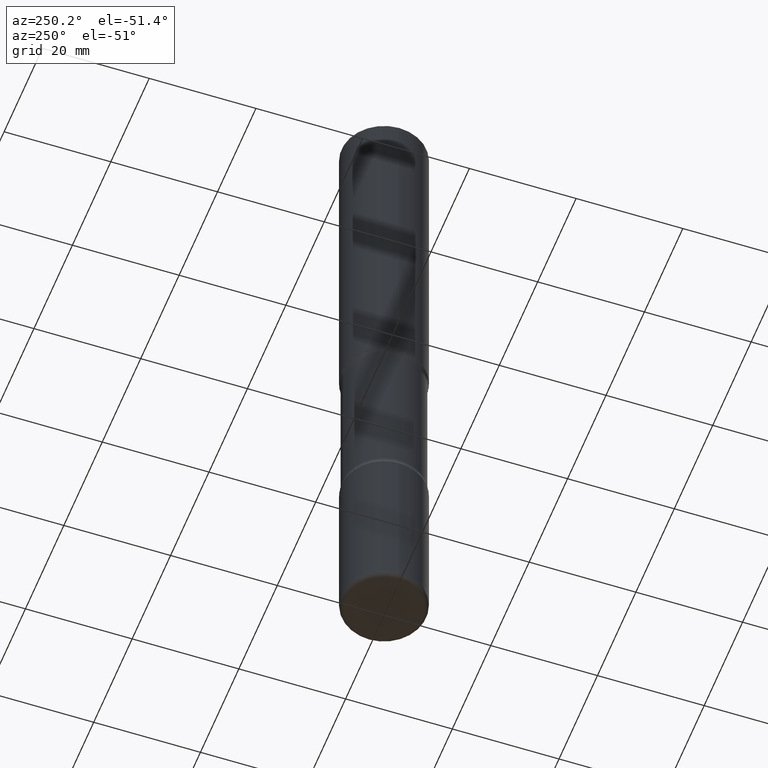
[diagram: clean part render]
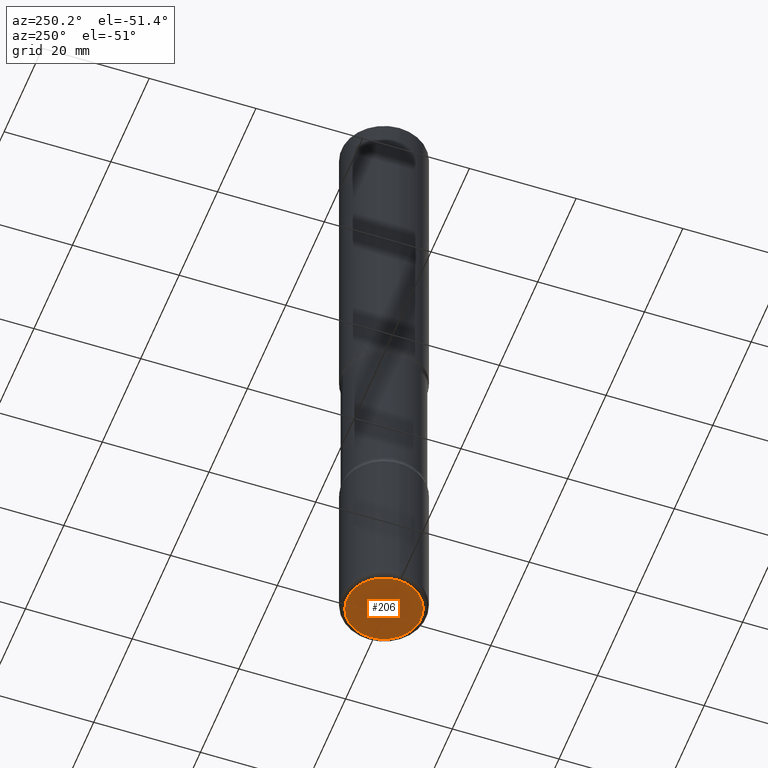
[diagram: same view with one face highlighted and labeled with its STEP entity id]
A machine part, auxiliary view. The second image highlights one B-rep face of the part: STEP entity #206.
In plain terms, the highlighted planar face has unit normal (0, -0, -1).
Its self-contained STEP definition (entity closure, byte-faithful):
#13 = CIRCLE ( 'NONE', #433, 0.2725000000000002420 ) ;
#40 = ORIENTED_EDGE ( 'NONE', *, *, #502, .F. ) ;
#76 = CIRCLE ( 'NONE', #508, 0.2725000000000002420 ) ;
#121 = DIRECTION ( 'NONE',  ( 1.000000000000000000, -6.982962677686267499E-15, 0.000000000000000000 ) ) ;
#154 = FACE_OUTER_BOUND ( 'NONE', #464, .T. ) ;
#166 = DIRECTION ( 'NONE',  ( 1.000000000000000000, -6.982962677686267499E-15, 0.000000000000000000 ) ) ;
#202 = CARTESIAN_POINT ( 'NONE',  ( 1.222734403092568523E-28, -1.745740669421572989E-14, -5.000000000000000000 ) ) ;
#206 = ADVANCED_FACE ( 'NONE', ( #154 ), #495, .T. ) ;
#210 = CARTESIAN_POINT ( 'NONE',  ( 1.222734403092568523E-28, -1.745740669421572989E-14, -5.000000000000000000 ) ) ;
#232 = DIRECTION ( 'NONE',  ( 2.438088387897960049E-29, -3.491481338843145188E-15, -1.000000000000000000 ) ) ;
#239 = VERTEX_POINT ( 'NONE', #240 ) ;
#240 = CARTESIAN_POINT ( 'NONE',  ( 0.2725000000000002420, -1.936026402388523977E-14, -5.000000000000000000 ) ) ;
#247 = DIRECTION ( 'NONE',  ( -2.445468806185136597E-29, 3.491481338843145583E-15, 1.000000000000000000 ) ) ;
#379 = AXIS2_PLACEMENT_3D ( 'NONE', #202, #232, #492 ) ;
#410 = EDGE_CURVE ( 'NONE', #431, #239, #76, .T. ) ;
#422 = CARTESIAN_POINT ( 'NONE',  ( 1.222734403092568523E-28, -1.745740669421572989E-14, -5.000000000000000000 ) ) ;
#427 = CARTESIAN_POINT ( 'NONE',  ( -0.2725000000000002420, -1.530923956534057998E-14, -5.000000000000000000 ) ) ;
#431 = VERTEX_POINT ( 'NONE', #427 ) ;
#433 = AXIS2_PLACEMENT_3D ( 'NONE', #422, #511, #121 ) ;
#464 = EDGE_LOOP ( 'NONE', ( #40, #545 ) ) ;
#492 = DIRECTION ( 'NONE',  ( -1.000000000000000000, 6.982962677686265922E-15, -4.876176775795935793E-29 ) ) ;
#495 = PLANE ( 'NONE',  #379 ) ;
#502 = EDGE_CURVE ( 'NONE', #239, #431, #13, .T. ) ;
#508 = AXIS2_PLACEMENT_3D ( 'NONE', #210, #247, #166 ) ;
#511 = DIRECTION ( 'NONE',  ( -2.445468806185136597E-29, 3.491481338843145583E-15, 1.000000000000000000 ) ) ;
#545 = ORIENTED_EDGE ( 'NONE', *, *, #410, .F. ) ;